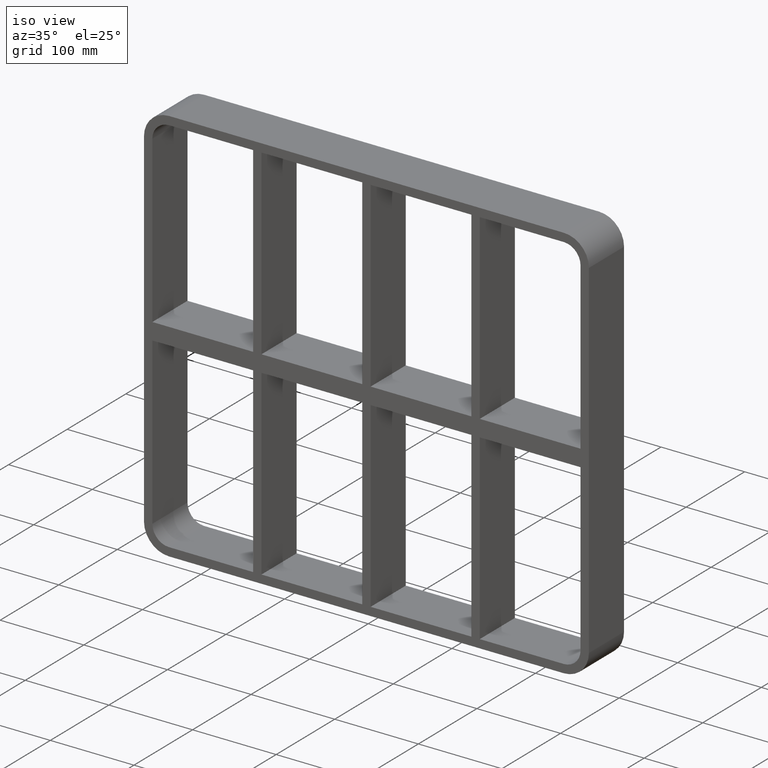
[diagram: clean part render]
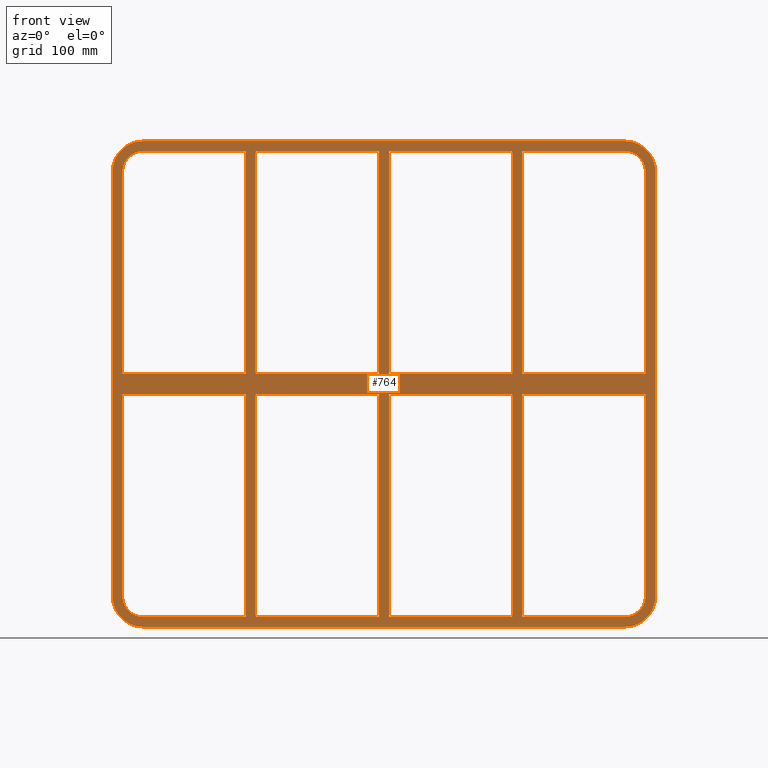
[diagram: tour spotlight — one face highlighted and labeled with its STEP entity id]
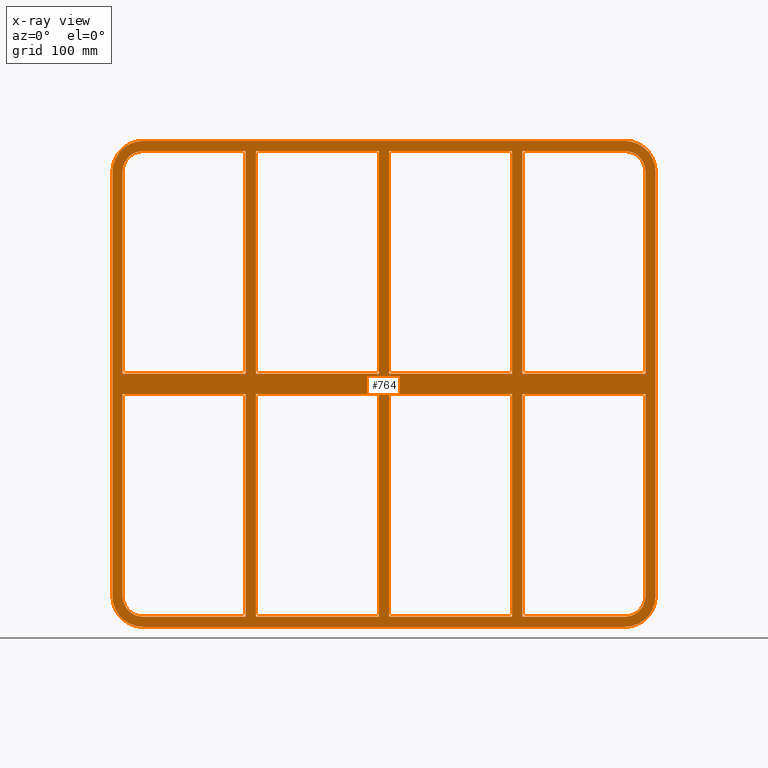
[diagram: x-ray of the same camera — body ghosted, this tour face saturated]
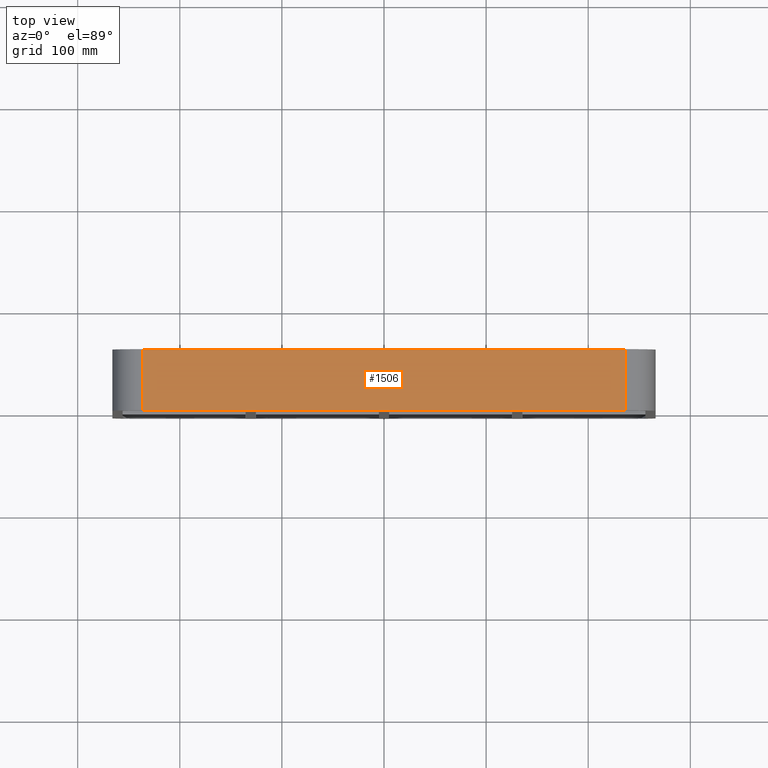
[diagram: tour spotlight — one face highlighted and labeled with its STEP entity id]
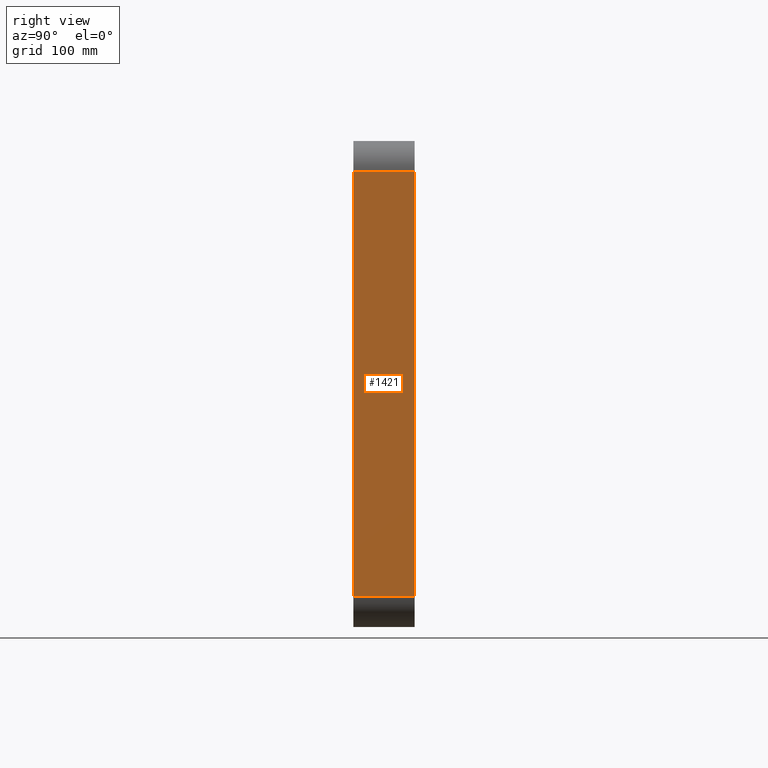
[diagram: tour spotlight — one face highlighted and labeled with its STEP entity id]
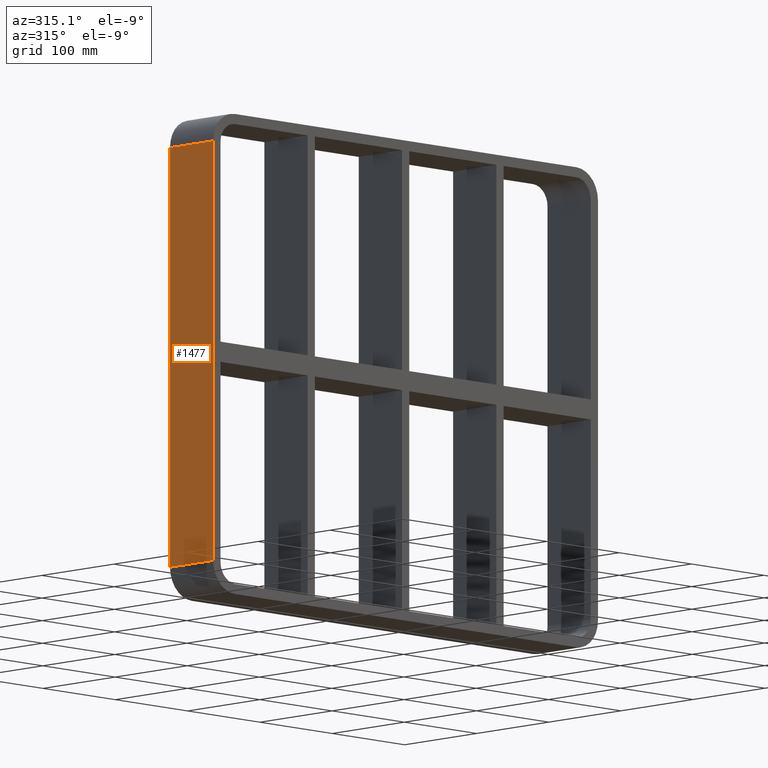
[diagram: tour spotlight — one face highlighted and labeled with its STEP entity id]
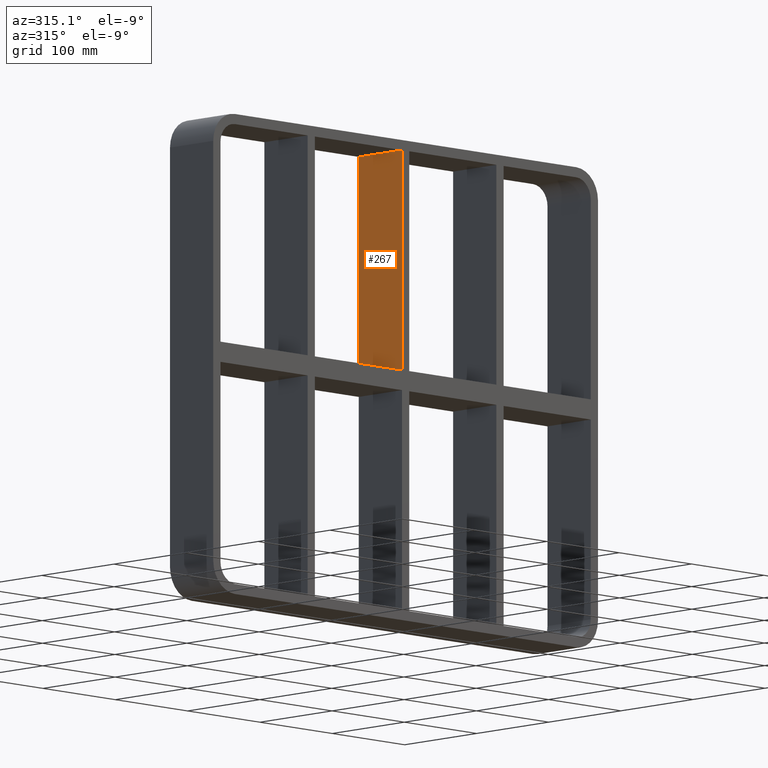
[diagram: tour spotlight — one face highlighted and labeled with its STEP entity id]
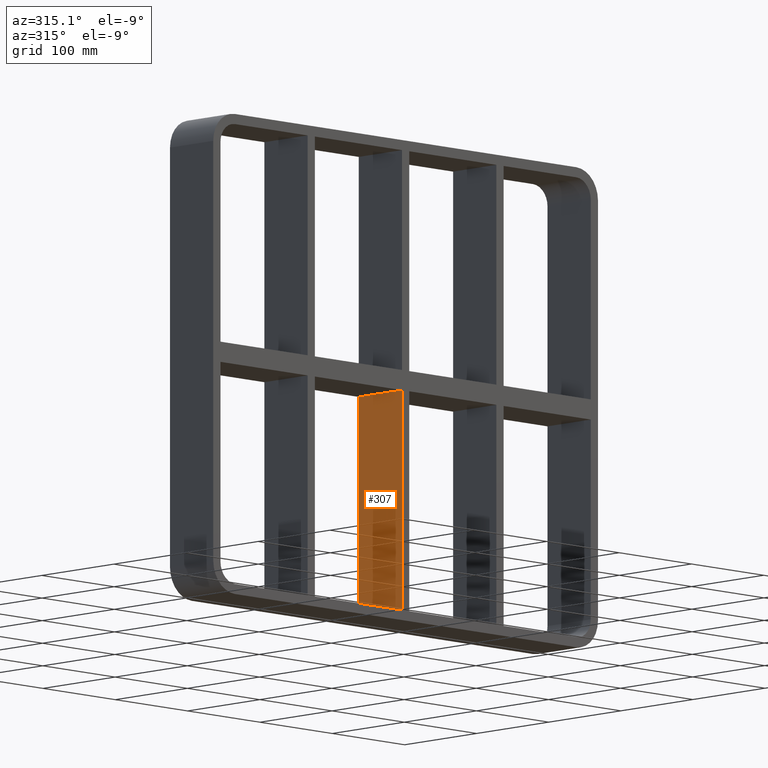
[diagram: tour spotlight — one face highlighted and labeled with its STEP entity id]
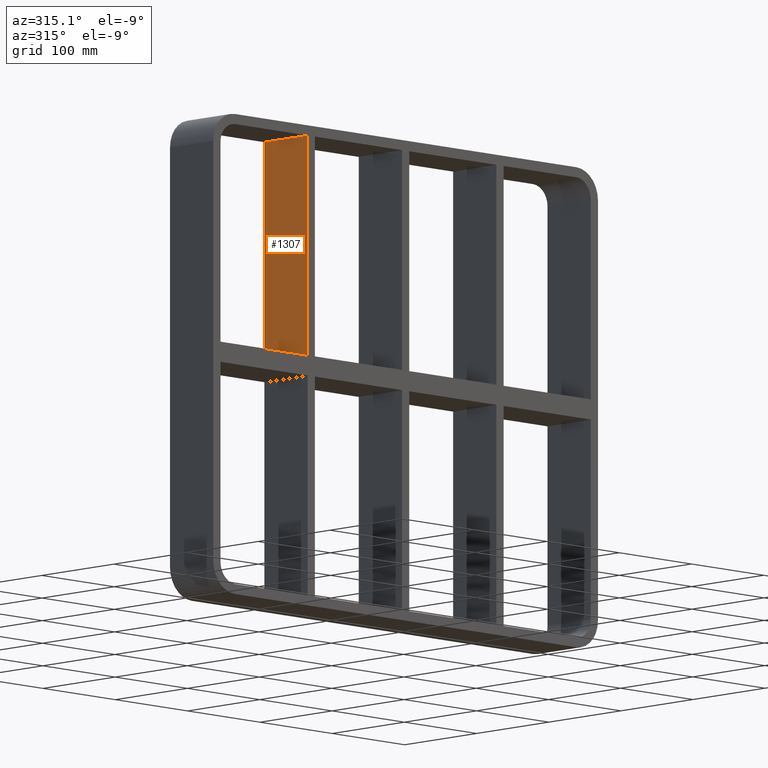
[diagram: tour spotlight — one face highlighted and labeled with its STEP entity id]
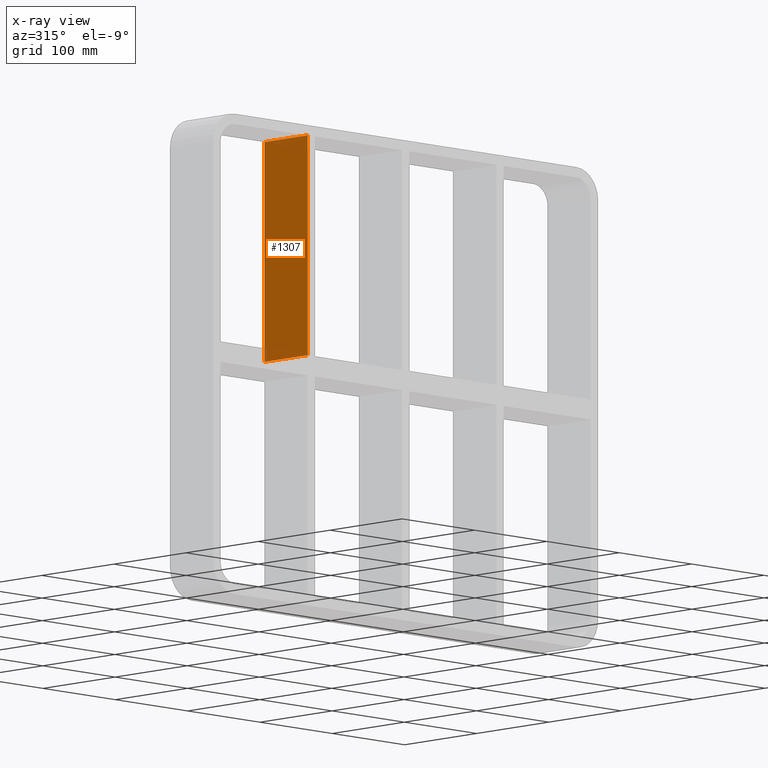
[diagram: x-ray of the same camera — body ghosted, this tour face saturated]
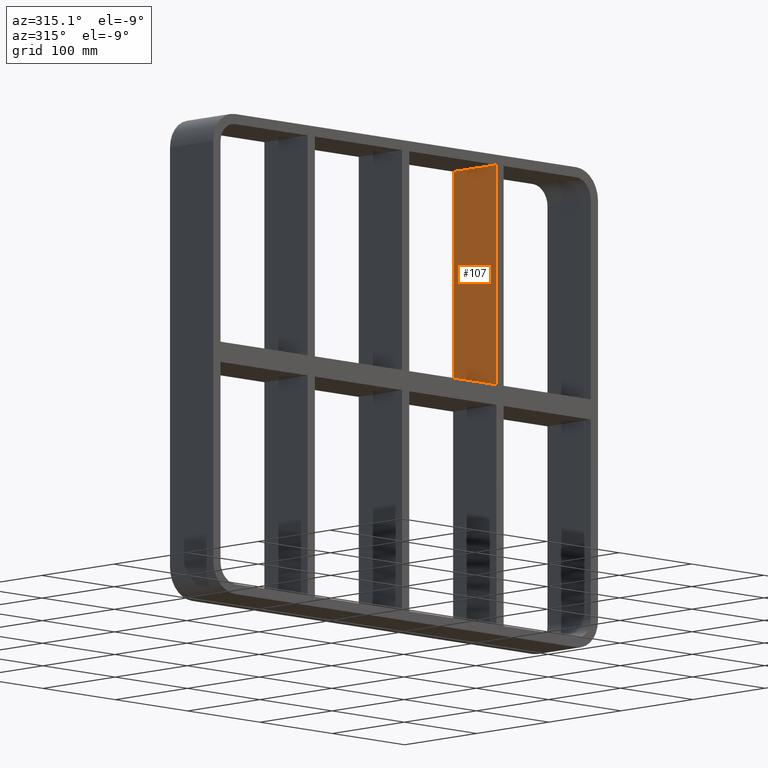
[diagram: tour spotlight — one face highlighted and labeled with its STEP entity id]
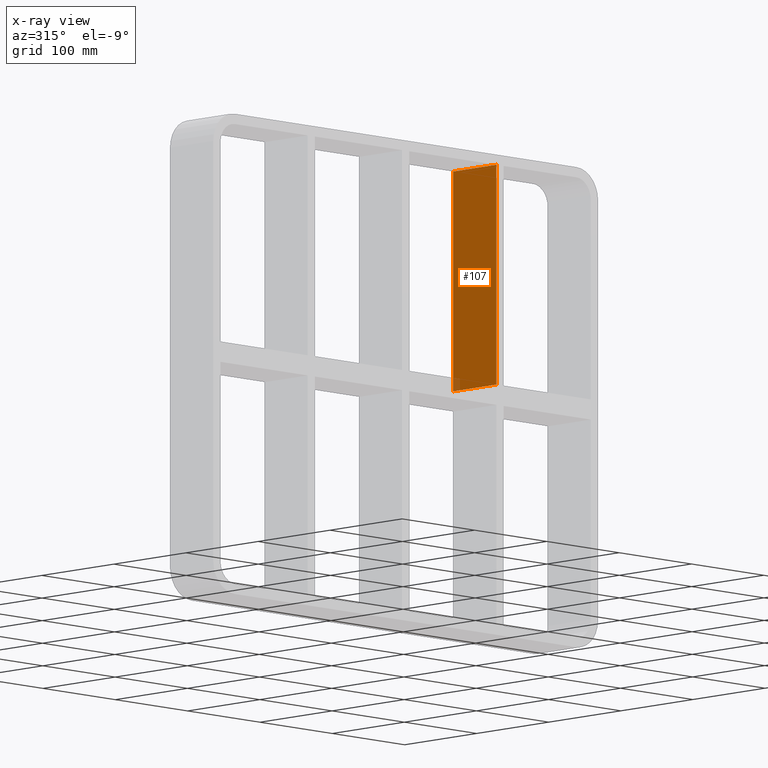
[diagram: x-ray of the same camera — body ghosted, this tour face saturated]
A machine part: a face-by-face anatomy tour. The part has 46 B-rep faces; the first image is the clean iso view, then the 8 largest visible faces are spotlighted one at a time (largest first), each with its STEP entity span.

Face 1 — front view, entity #764. An x-ray twin of the same camera follows (body ghosted, this face saturated) — the face is partly hidden behind the body. In plain terms, the highlighted planar face has unit normal (0, 1, 0).
Definition (entity closure, byte-faithful):
#73=CARTESIAN_POINT('',(125.49999999999862,-3.0,10.0));
#74=VERTEX_POINT('',#73);
#83=CARTESIAN_POINT('',(125.49999999999856,-3.0,228.0));
#84=VERTEX_POINT('',#83);
#85=CARTESIAN_POINT('',(125.49999999999862,-3.0,10.0));
#86=DIRECTION('',(0.0,0.0,1.0));
#87=VECTOR('',#86,218.0);
#88=LINE('',#85,#87);
#89=EDGE_CURVE('',#74,#84,#88,.T.);
#115=CARTESIAN_POINT('',(125.49999999999864,-3.0,-10.000000000009308));
#116=VERTEX_POINT('',#115);
#131=CARTESIAN_POINT('',(125.49999999999869,-3.0,-228.0));
#132=VERTEX_POINT('',#131);
#139=CARTESIAN_POINT('',(125.49999999999869,-3.0,-228.0));
#140=DIRECTION('',(0.0,0.0,1.0));
#141=VECTOR('',#140,217.99999999999071);
#142=LINE('',#139,#141);
#143=EDGE_CURVE('',#132,#116,#142,.T.);
#155=CARTESIAN_POINT('',(135.50000000000728,-3.0,10.0));
#156=VERTEX_POINT('',#155);
#171=CARTESIAN_POINT('',(135.50000000000728,-3.0,228.0));
#172=VERTEX_POINT('',#171);
#179=CARTESIAN_POINT('',(135.50000000000728,-3.0,228.0));
#180=DIRECTION('',(0.0,0.0,-1.0));
#181=VECTOR('',#180,218.0);
#182=LINE('',#179,#181);
#183=EDGE_CURVE('',#172,#156,#182,.T.);
#193=CARTESIAN_POINT('',(135.50000000000728,-3.0,-10.000000000009308));
#194=VERTEX_POINT('',#193);
#203=CARTESIAN_POINT('',(135.50000000000728,-3.0,-227.99999999998451));
#204=VERTEX_POINT('',#203);
#205=CARTESIAN_POINT('',(135.50000000000728,-3.0,-10.000000000009322));
#206=DIRECTION('',(0.0,0.0,-1.0));
#207=VECTOR('',#206,217.99999999997522);
#208=LINE('',#205,#207);
#209=EDGE_CURVE('',#194,#204,#208,.T.);
#233=CARTESIAN_POINT('',(-5.000000000001379,-3.0,10.0));
#234=VERTEX_POINT('',#233);
#243=CARTESIAN_POINT('',(-5.000000000001439,-3.0,228.0));
#244=VERTEX_POINT('',#243);
#245=CARTESIAN_POINT('',(-5.000000000001379,-3.0,10.0));
#246=DIRECTION('',(0.0,0.0,1.0));
#247=VECTOR('',#246,218.0);
#248=LINE('',#245,#247);
#249=EDGE_CURVE('',#234,#244,#248,.T.);
#275=CARTESIAN_POINT('',(-5.000000000001375,-3.0,-10.000000000009308));
#276=VERTEX_POINT('',#275);
#291=CARTESIAN_POINT('',(-5.000000000001315,-3.0,-228.0));
#292=VERTEX_POINT('',#291);
#299=CARTESIAN_POINT('',(-5.000000000001315,-3.0,-228.0));
#300=DIRECTION('',(0.0,0.0,1.0));
#301=VECTOR('',#300,217.99999999999071);
#302=LINE('',#299,#301);
#303=EDGE_CURVE('',#292,#276,#302,.T.);
#315=CARTESIAN_POINT('',(5.000000000007283,-3.0,10.0));
#316=VERTEX_POINT('',#315);
#331=CARTESIAN_POINT('',(5.000000000007283,-3.0,228.0));
#332=VERTEX_POINT('',#331);
#339=CARTESIAN_POINT('',(5.000000000007283,-3.0,228.0));
#340=DIRECTION('',(0.0,0.0,-1.0));
#341=VECTOR('',#340,218.0);
#342=LINE('',#339,#341);
#343=EDGE_CURVE('',#332,#316,#342,.T.);
#353=CARTESIAN_POINT('',(5.000000000007283,-3.0,-10.000000000009308));
#354=VERTEX_POINT('',#353);
#363=CARTESIAN_POINT('',(5.000000000007283,-3.0,-227.99999999998451));
#364=VERTEX_POINT('',#363);
#365=CARTESIAN_POINT('',(5.000000000007283,-3.0,-10.000000000009322));
#366=DIRECTION('',(0.0,0.0,-1.0));
#367=VECTOR('',#366,217.99999999997522);
#368=LINE('',#365,#367);
#369=EDGE_CURVE('',#354,#364,#368,.T.);
#402=CARTESIAN_POINT('',(-125.49999999999272,-3.0,-227.99999999998451));
#403=VERTEX_POINT('',#402);
#410=CARTESIAN_POINT('',(-5.000000000001307,-3.0,-228.0));
#411=DIRECTION('',(-1.0,0.0,0.0));
#412=VECTOR('',#411,120.49999999999142);
#413=LINE('',#410,#412);
#414=EDGE_CURVE('',#292,#403,#413,.T.);
#432=CARTESIAN_POINT('',(125.49999999999871,-3.0,-228.0));
#433=DIRECTION('',(-1.0,0.0,0.0));
#434=VECTOR('',#433,120.4999999999914);
#435=LINE('',#432,#434);
#436=EDGE_CURVE('',#132,#364,#435,.T.);
#447=CARTESIAN_POINT('',(236.00000000000009,-3.0,-228.0));
#448=VERTEX_POINT('',#447);
#449=CARTESIAN_POINT('',(236.00000000000011,-3.0,-228.0));
#450=DIRECTION('',(-1.0,0.0,0.0));
#451=VECTOR('',#450,100.49999999999281);
#452=LINE('',#449,#451);
#453=EDGE_CURVE('',#448,#204,#452,.T.);
#472=CARTESIAN_POINT('',(0.0,-3.0,0.0));
#473=DIRECTION('',(0.0,1.0,0.0));
#474=DIRECTION('',(0.0,0.0,1.0));
#475=AXIS2_PLACEMENT_3D('',#472,#473,#474);
#476=PLANE('',#475);
#477=CARTESIAN_POINT('',(266.0,-3.0,-208.0));
#478=VERTEX_POINT('',#477);
#479=CARTESIAN_POINT('',(236.0,-3.0,-238.0));
#480=VERTEX_POINT('',#479);
#481=CARTESIAN_POINT('',(236.0,-3.0,-208.0));
#482=DIRECTION('',(0.0,1.0,0.0));
#483=DIRECTION('',(0.707106781186547,0.0,-0.707106781186547));
#484=AXIS2_PLACEMENT_3D('',#481,#482,#483);
#485=CIRCLE('',#484,30.0);
#486=EDGE_CURVE('',#478,#480,#485,.T.);
#487=ORIENTED_EDGE('',*,*,#486,.F.);
#488=CARTESIAN_POINT('',(266.0,-3.0,208.0));
#489=VERTEX_POINT('',#488);
#490=CARTESIAN_POINT('',(266.0,-3.0,-208.0));
#491=DIRECTION('',(0.0,0.0,1.0));
#492=VECTOR('',#491,416.0);
#493=LINE('',#490,#492);
#494=EDGE_CURVE('',#478,#489,#493,.T.);
#495=ORIENTED_EDGE('',*,*,#494,.T.);
#496=CARTESIAN_POINT('',(236.0,-3.0,238.0));
#497=VERTEX_POINT('',#496);
#498=CARTESIAN_POINT('',(236.0,-3.0,208.0));
#499=DIRECTION('',(0.0,1.0,0.0));
#500=DIRECTION('',(0.707106781186547,0.0,0.707106781186547));
#501=AXIS2_PLACEMENT_3D('',#498,#499,#500);
#502=CIRCLE('',#501,30.0);
#503=EDGE_CURVE('',#497,#489,#502,.T.);
#504=ORIENTED_EDGE('',*,*,#503,.F.);
#505=CARTESIAN_POINT('',(-236.0,-3.0,238.0));
#506=VERTEX_POINT('',#505);
#507=CARTESIAN_POINT('',(236.0,-3.0,238.0));
#508=DIRECTION('',(-1.0,0.0,0.0));
#509=VECTOR('',#508,472.0);
#510=LINE('',#507,#509);
#511=EDGE_CURVE('',#497,#506,#510,.T.);
#512=ORIENTED_EDGE('',*,*,#511,.T.);
#513=CARTESIAN_POINT('',(-266.0,-3.0,208.0));
#514=VERTEX_POINT('',#513);
#515=CARTESIAN_POINT('',(-236.0,-3.0,208.0));
#516=DIRECTION('',(0.0,1.0,0.0));
#517=DIRECTION('',(-0.707106781186547,0.0,0.707106781186547));
#518=AXIS2_PLACEMENT_3D('',#515,#516,#517);
#519=CIRCLE('',#518,30.0);
#520=EDGE_CURVE('',#514,#506,#519,.T.);
#521=ORIENTED_EDGE('',*,*,#520,.F.);
#522=CARTESIAN_POINT('',(-266.0,-3.0,-208.0));
#523=VERTEX_POINT('',#522);
#524=CARTESIAN_POINT('',(-266.0,-3.0,208.0));
#525=DIRECTION('',(0.0,0.0,-1.0));
#526=VECTOR('',#525,416.0);
#527=LINE('',#524,#526);
#528=EDGE_CURVE('',#514,#523,#527,.T.);
#529=ORIENTED_EDGE('',*,*,#528,.T.);
#530=CARTESIAN_POINT('',(-236.0,-3.0,-238.0));
#531=VERTEX_POINT('',#530);
#532=CARTESIAN_POINT('',(-236.0,-3.0,-208.0));
#533=DIRECTION('',(0.0,1.0,0.0));
#534=DIRECTION('',(-0.707106781186547,0.0,-0.707106781186547));
#535=AXIS2_PLACEMENT_3D('',#532,#533,#534);
#536=CIRCLE('',#535,30.0);
#537=EDGE_CURVE('',#531,#523,#536,.T.);
#538=ORIENTED_EDGE('',*,*,#537,.F.);
#539=CARTESIAN_POINT('',(-236.0,-3.0,-238.0));
#540=DIRECTION('',(1.0,0.0,0.0));
#541=VECTOR('',#540,472.0);
#542=LINE('',#539,#541);
#543=EDGE_CURVE('',#531,#480,#542,.T.);
#544=ORIENTED_EDGE('',*,*,#543,.T.);
#545=EDGE_LOOP('',(#487,#495,#504,#512,#521,#529,#538,#544));
#546=FACE_OUTER_BOUND('',#545,.T.);
#547=ORIENTED_EDGE('',*,*,#436,.T.);
#548=ORIENTED_EDGE('',*,*,#369,.F.);
#549=CARTESIAN_POINT('',(125.49999999999864,-3.0,-10.000000000009313));
#550=DIRECTION('',(-1.0,0.0,0.0));
#551=VECTOR('',#550,120.49999999999136);
#552=LINE('',#549,#551);
#553=EDGE_CURVE('',#116,#354,#552,.T.);
#554=ORIENTED_EDGE('',*,*,#553,.F.);
#555=ORIENTED_EDGE('',*,*,#143,.F.);
#556=EDGE_LOOP('',(#547,#548,#554,#555));
#557=FACE_BOUND('',#556,.T.);
#558=CARTESIAN_POINT('',(5.000000000007304,-3.0,10.0));
#559=DIRECTION('',(1.0,0.0,0.0));
#560=VECTOR('',#559,120.4999999999913);
#561=LINE('',#558,#560);
#562=EDGE_CURVE('',#316,#74,#561,.T.);
#563=ORIENTED_EDGE('',*,*,#562,.F.);
#564=ORIENTED_EDGE('',*,*,#343,.F.);
#565=CARTESIAN_POINT('',(5.000000000007276,-3.0,228.0));
#566=DIRECTION('',(1.0,0.0,0.0));
#567=VECTOR('',#566,120.4999999999913);
#568=LINE('',#565,#567);
#569=EDGE_CURVE('',#332,#84,#568,.T.);
#570=ORIENTED_EDGE('',*,*,#569,.T.);
#571=ORIENTED_EDGE('',*,*,#89,.F.);
#572=EDGE_LOOP('',(#563,#564,#570,#571));
#573=FACE_BOUND('',#572,.T.);
#574=ORIENTED_EDGE('',*,*,#414,.T.);
#575=CARTESIAN_POINT('',(-125.49999999999272,-3.0,-10.000000000009358));
#576=VERTEX_POINT('',#575);
#577=CARTESIAN_POINT('',(-125.49999999999272,-3.0,-10.000000000009351));
#578=DIRECTION('',(0.0,0.0,-1.0));
#579=VECTOR('',#578,217.99999999997519);
#580=LINE('',#577,#579);
#581=EDGE_CURVE('',#576,#403,#580,.T.);
#582=ORIENTED_EDGE('',*,*,#581,.F.);
#583=CARTESIAN_POINT('',(-5.000000000001364,-3.0,-10.000000000009335));
#584=DIRECTION('',(-1.0,0.0,0.0));
#585=VECTOR('',#584,120.49999999999136);
#586=LINE('',#583,#585);
#587=EDGE_CURVE('',#276,#576,#586,.T.);
#588=ORIENTED_EDGE('',*,*,#587,.F.);
#589=ORIENTED_EDGE('',*,*,#303,.F.);
#590=EDGE_LOOP('',(#574,#582,#588,#589));
#591=FACE_BOUND('',#590,.T.);
#592=CARTESIAN_POINT('',(-125.49999999999272,-3.0,10.0));
#593=VERTEX_POINT('',#592);
#594=CARTESIAN_POINT('',(-125.49999999999272,-3.0,10.0));
#595=DIRECTION('',(1.0,0.0,0.0));
#596=VECTOR('',#595,120.49999999999133);
#597=LINE('',#594,#596);
#598=EDGE_CURVE('',#593,#234,#597,.T.);
#599=ORIENTED_EDGE('',*,*,#598,.F.);
#600=CARTESIAN_POINT('',(-125.49999999999272,-3.0,228.0));
#601=VERTEX_POINT('',#600);
#602=CARTESIAN_POINT('',(-125.49999999999272,-3.0,228.0));
#603=DIRECTION('',(0.0,0.0,-1.0));
#604=VECTOR('',#603,218.0);
#605=LINE('',#602,#604);
#606=EDGE_CURVE('',#601,#593,#605,.T.);
#607=ORIENTED_EDGE('',*,*,#606,.F.);
#608=CARTESIAN_POINT('',(-125.49999999999272,-3.0,228.0));
#609=DIRECTION('',(1.0,0.0,0.0));
#610=VECTOR('',#609,120.49999999999129);
#611=LINE('',#608,#610);
#612=EDGE_CURVE('',#601,#244,#611,.T.);
#613=ORIENTED_EDGE('',*,*,#612,.T.);
#614=ORIENTED_EDGE('',*,*,#249,.F.);
#615=EDGE_LOOP('',(#599,#607,#613,#614));
#616=FACE_BOUND('',#615,.T.);
#617=ORIENTED_EDGE('',*,*,#183,.F.);
#618=CARTESIAN_POINT('',(236.00000000000006,-3.0,228.0));
#619=VERTEX_POINT('',#618);
#620=CARTESIAN_POINT('',(135.50000000000728,-3.0,228.0));
#621=DIRECTION('',(1.0,0.0,0.0));
#622=VECTOR('',#621,100.49999999999278);
#623=LINE('',#620,#622);
#624=EDGE_CURVE('',#172,#619,#623,.T.);
#625=ORIENTED_EDGE('',*,*,#624,.T.);
#626=CARTESIAN_POINT('',(256.00000000000011,-3.0,208.0));
#627=VERTEX_POINT('',#626);
#628=CARTESIAN_POINT('',(236.00000000000009,-3.0,208.0));
#629=DIRECTION('',(0.0,-1.0,0.0));
#630=DIRECTION('',(0.707106781186547,0.0,0.707106781186547));
#631=AXIS2_PLACEMENT_3D('',#628,#629,#630);
#632=CIRCLE('',#631,19.999999999999996);
#633=EDGE_CURVE('',#627,#619,#632,.T.);
#634=ORIENTED_EDGE('',*,*,#633,.F.);
#635=CARTESIAN_POINT('',(255.99999999999994,-3.0,10.0));
#636=VERTEX_POINT('',#635);
#637=CARTESIAN_POINT('',(256.00000000000011,-3.0,208.0));
#638=DIRECTION('',(0.0,0.0,-1.0));
#639=VECTOR('',#638,198.0);
#640=LINE('',#637,#639);
#641=EDGE_CURVE('',#627,#636,#640,.T.);
#642=ORIENTED_EDGE('',*,*,#641,.T.);
#643=CARTESIAN_POINT('',(135.5000000000073,-3.0,10.0));
#644=DIRECTION('',(1.0,0.0,0.0));
#645=VECTOR('',#644,120.49999999999267);
#646=LINE('',#643,#645);
#647=EDGE_CURVE('',#156,#636,#646,.T.);
#648=ORIENTED_EDGE('',*,*,#647,.F.);
#649=EDGE_LOOP('',(#617,#625,#634,#642,#648));
#650=FACE_BOUND('',#649,.T.);
#651=ORIENTED_EDGE('',*,*,#209,.F.);
#652=CARTESIAN_POINT('',(256.00000000000364,-3.0,-10.00000000000929));
#653=VERTEX_POINT('',#652);
#654=CARTESIAN_POINT('',(256.00000000000364,-3.0,-10.00000000000929));
#655=DIRECTION('',(-1.0,0.0,0.0));
#656=VECTOR('',#655,120.49999999999636);
#657=LINE('',#654,#656);
#658=EDGE_CURVE('',#653,#194,#657,.T.);
#659=ORIENTED_EDGE('',*,*,#658,.F.);
#660=CARTESIAN_POINT('',(256.00000000000011,-3.0,-208.00000000000006));
#661=VERTEX_POINT('',#660);
#662=CARTESIAN_POINT('',(256.00000000000011,-3.0,-10.000000000009294));
#663=DIRECTION('',(0.0,0.0,-1.0));
#664=VECTOR('',#663,197.99999999999071);
#665=LINE('',#662,#664);
#666=EDGE_CURVE('',#653,#661,#665,.T.);
#667=ORIENTED_EDGE('',*,*,#666,.T.);
#668=CARTESIAN_POINT('',(236.00000000000009,-3.0,-208.0));
#669=DIRECTION('',(0.0,-1.0,0.0));
#670=DIRECTION('',(0.707106781186547,0.0,-0.707106781186547));
#671=AXIS2_PLACEMENT_3D('',#668,#669,#670);
#672=CIRCLE('',#671,19.999999999999996);
#673=EDGE_CURVE('',#448,#661,#672,.T.);
#674=ORIENTED_EDGE('',*,*,#673,.F.);
#675=ORIENTED_EDGE('',*,*,#453,.T.);
#676=EDGE_LOOP('',(#651,#659,#667,#674,#675));
#677=FACE_BOUND('',#676,.T.);
#678=CARTESIAN_POINT('',(-255.9999999999998,-3.0,10.0));
#679=VERTEX_POINT('',#678);
#680=CARTESIAN_POINT('',(-256.0,-3.0,208.00000000000006));
#681=VERTEX_POINT('',#680);
#682=CARTESIAN_POINT('',(-256.0,-3.0,10.0));
#683=DIRECTION('',(0.0,0.0,1.0));
#684=VECTOR('',#683,198.0);
#685=LINE('',#682,#684);
#686=EDGE_CURVE('',#679,#681,#685,.T.);
#687=ORIENTED_EDGE('',*,*,#686,.T.);
#688=CARTESIAN_POINT('',(-236.0,-3.0,228.0));
#689=VERTEX_POINT('',#688);
#690=CARTESIAN_POINT('',(-236.0,-3.0,208.0));
#691=DIRECTION('',(0.0,-1.0,0.0));
#692=DIRECTION('',(-0.707106781186547,0.0,0.707106781186547));
#693=AXIS2_PLACEMENT_3D('',#690,#691,#692);
#694=CIRCLE('',#693,19.999999999999996);
#695=EDGE_CURVE('',#689,#681,#694,.T.);
#696=ORIENTED_EDGE('',*,*,#695,.F.);
#697=CARTESIAN_POINT('',(-135.50000000000145,-3.0,228.0));
#698=VERTEX_POINT('',#697);
#699=CARTESIAN_POINT('',(-236.0,-3.0,228.0));
#700=DIRECTION('',(1.0,0.0,0.0));
#701=VECTOR('',#700,100.49999999999855);
#702=LINE('',#699,#701);
#703=EDGE_CURVE('',#689,#698,#702,.T.);
#704=ORIENTED_EDGE('',*,*,#703,.T.);
#705=CARTESIAN_POINT('',(-135.50000000000139,-3.0,10.0));
#706=VERTEX_POINT('',#705);
#707=CARTESIAN_POINT('',(-135.50000000000136,-3.0,10.0));
#708=DIRECTION('',(0.0,0.0,1.0));
#709=VECTOR('',#708,218.0);
#710=LINE('',#707,#709);
#711=EDGE_CURVE('',#706,#698,#710,.T.);
#712=ORIENTED_EDGE('',*,*,#711,.F.);
#713=CARTESIAN_POINT('',(-255.9999999999998,-3.0,10.0));
#714=DIRECTION('',(1.0,0.0,0.0));
#715=VECTOR('',#714,120.49999999999841);
#716=LINE('',#713,#715);
#717=EDGE_CURVE('',#679,#706,#716,.T.);
#718=ORIENTED_EDGE('',*,*,#717,.F.);
#719=EDGE_LOOP('',(#687,#696,#704,#712,#718));
#720=FACE_BOUND('',#719,.T.);
#721=CARTESIAN_POINT('',(-135.50000000000139,-3.0,-10.00000000000936));
#722=VERTEX_POINT('',#721);
#723=CARTESIAN_POINT('',(-255.99999999999977,-3.0,-10.000000000009379));
#724=VERTEX_POINT('',#723);
#725=CARTESIAN_POINT('',(-135.50000000000136,-3.0,-10.000000000009358));
#726=DIRECTION('',(-1.0,0.0,0.0));
#727=VECTOR('',#726,120.49999999999841);
#728=LINE('',#725,#727);
#729=EDGE_CURVE('',#722,#724,#728,.T.);
#730=ORIENTED_EDGE('',*,*,#729,.F.);
#731=CARTESIAN_POINT('',(-135.50000000000131,-3.0,-228.0));
#732=VERTEX_POINT('',#731);
#733=CARTESIAN_POINT('',(-135.50000000000131,-3.0,-228.0));
#734=DIRECTION('',(0.0,0.0,1.0));
#735=VECTOR('',#734,217.99999999999068);
#736=LINE('',#733,#735);
#737=EDGE_CURVE('',#732,#722,#736,.T.);
#738=ORIENTED_EDGE('',*,*,#737,.F.);
#739=CARTESIAN_POINT('',(-236.0,-3.0,-228.0));
#740=VERTEX_POINT('',#739);
#741=CARTESIAN_POINT('',(-135.50000000000131,-3.0,-228.0));
#742=DIRECTION('',(-1.0,0.0,0.0));
#743=VECTOR('',#742,100.49999999999869);
#744=LINE('',#741,#743);
#745=EDGE_CURVE('',#732,#740,#744,.T.);
#746=ORIENTED_EDGE('',*,*,#745,.T.);
#747=CARTESIAN_POINT('',(-256.0,-3.0,-208.0));
#748=VERTEX_POINT('',#747);
#749=CARTESIAN_POINT('',(-236.0,-3.0,-208.0));
#750=DIRECTION('',(0.0,-1.0,0.0));
#751=DIRECTION('',(-0.707106781186547,0.0,-0.707106781186547));
#752=AXIS2_PLACEMENT_3D('',#749,#750,#751);
#753=CIRCLE('',#752,19.999999999999996);
#754=EDGE_CURVE('',#748,#740,#753,.T.);
#755=ORIENTED_EDGE('',*,*,#754,.F.);
#756=CARTESIAN_POINT('',(-256.0,-3.0,-208.0));
#757=DIRECTION('',(0.0,0.0,1.0));
#758=VECTOR('',#757,197.99999999999062);
#759=LINE('',#756,#758);
#760=EDGE_CURVE('',#748,#724,#759,.T.);
#761=ORIENTED_EDGE('',*,*,#760,.T.);
#762=EDGE_LOOP('',(#730,#738,#746,#755,#761));
#763=FACE_BOUND('',#762,.T.);
#764=ADVANCED_FACE('',(#546,#557,#573,#591,#616,#650,#677,#720,#763),#476,.F.);

Face 2 — top view, entity #1506. In plain terms, the highlighted planar face has unit normal (0, 0, 1).
Definition (entity closure, byte-faithful):
#496=CARTESIAN_POINT('',(236.0,-3.0,238.0));
#497=VERTEX_POINT('',#496);
#505=CARTESIAN_POINT('',(-236.0,-3.0,238.0));
#506=VERTEX_POINT('',#505);
#507=CARTESIAN_POINT('',(236.0,-3.0,238.0));
#508=DIRECTION('',(-1.0,0.0,0.0));
#509=VECTOR('',#508,472.0);
#510=LINE('',#507,#509);
#511=EDGE_CURVE('',#497,#506,#510,.T.);
#854=CARTESIAN_POINT('',(-236.0,57.0,238.0));
#855=VERTEX_POINT('',#854);
#863=CARTESIAN_POINT('',(236.0,57.0,238.0));
#864=VERTEX_POINT('',#863);
#865=CARTESIAN_POINT('',(-236.0,57.0,238.0));
#866=DIRECTION('',(1.0,0.0,0.0));
#867=VECTOR('',#866,472.0);
#868=LINE('',#865,#867);
#869=EDGE_CURVE('',#855,#864,#868,.T.);
#1430=CARTESIAN_POINT('',(236.0,57.0,238.0));
#1431=DIRECTION('',(0.0,-1.0,0.0));
#1432=VECTOR('',#1431,60.0);
#1433=LINE('',#1430,#1432);
#1434=EDGE_CURVE('',#864,#497,#1433,.T.);
#1486=CARTESIAN_POINT('',(-236.0,-3.0,238.0));
#1487=DIRECTION('',(0.0,1.0,0.0));
#1488=VECTOR('',#1487,60.0);
#1489=LINE('',#1486,#1488);
#1490=EDGE_CURVE('',#506,#855,#1489,.T.);
#1495=CARTESIAN_POINT('',(-266.0,0.0,238.0));
#1496=DIRECTION('',(0.0,0.0,1.0));
#1497=DIRECTION('',(1.0,0.0,0.0));
#1498=AXIS2_PLACEMENT_3D('',#1495,#1496,#1497);
#1499=PLANE('',#1498);
#1500=ORIENTED_EDGE('',*,*,#1434,.F.);
#1501=ORIENTED_EDGE('',*,*,#869,.F.);
#1502=ORIENTED_EDGE('',*,*,#1490,.F.);
#1503=ORIENTED_EDGE('',*,*,#511,.F.);
#1504=EDGE_LOOP('',(#1500,#1501,#1502,#1503));
#1505=FACE_OUTER_BOUND('',#1504,.T.);
#1506=ADVANCED_FACE('',(#1505),#1499,.T.);

Face 3 — right view, entity #1421. In plain terms, the highlighted planar face has unit normal (1, 0, 0).
Definition (entity closure, byte-faithful):
#477=CARTESIAN_POINT('',(266.0,-3.0,-208.0));
#478=VERTEX_POINT('',#477);
#488=CARTESIAN_POINT('',(266.0,-3.0,208.0));
#489=VERTEX_POINT('',#488);
#490=CARTESIAN_POINT('',(266.0,-3.0,-208.0));
#491=DIRECTION('',(0.0,0.0,1.0));
#492=VECTOR('',#491,416.0);
#493=LINE('',#490,#492);
#494=EDGE_CURVE('',#478,#489,#493,.T.);
#820=CARTESIAN_POINT('',(266.0,57.0,-208.0));
#821=VERTEX_POINT('',#820);
#871=CARTESIAN_POINT('',(266.0,57.0,208.0));
#872=VERTEX_POINT('',#871);
#880=CARTESIAN_POINT('',(266.0,57.0,208.0));
#881=DIRECTION('',(0.0,0.0,-1.0));
#882=VECTOR('',#881,416.0);
#883=LINE('',#880,#882);
#884=EDGE_CURVE('',#872,#821,#883,.T.);
#1389=CARTESIAN_POINT('',(266.0,57.0,-208.0));
#1390=DIRECTION('',(0.0,-1.0,0.0));
#1391=VECTOR('',#1390,60.0);
#1392=LINE('',#1389,#1391);
#1393=EDGE_CURVE('',#821,#478,#1392,.T.);
#1405=CARTESIAN_POINT('',(266.0,0.0,238.0));
#1406=DIRECTION('',(1.0,0.0,0.0));
#1407=DIRECTION('',(0.0,0.0,-1.0));
#1408=AXIS2_PLACEMENT_3D('',#1405,#1406,#1407);
#1409=PLANE('',#1408);
#1410=ORIENTED_EDGE('',*,*,#1393,.F.);
#1411=ORIENTED_EDGE('',*,*,#884,.F.);
#1412=CARTESIAN_POINT('',(266.0,-3.0,208.0));
#1413=DIRECTION('',(0.0,1.0,0.0));
#1414=VECTOR('',#1413,60.0);
#1415=LINE('',#1412,#1414);
#1416=EDGE_CURVE('',#489,#872,#1415,.T.);
#1417=ORIENTED_EDGE('',*,*,#1416,.F.);
#1418=ORIENTED_EDGE('',*,*,#494,.F.);
#1419=EDGE_LOOP('',(#1410,#1411,#1417,#1418));
#1420=FACE_OUTER_BOUND('',#1419,.T.);
#1421=ADVANCED_FACE('',(#1420),#1409,.T.);

Face 4 — auxiliary view, entity #1477. In plain terms, the highlighted planar face has unit normal (-1, 0, 0).
Definition (entity closure, byte-faithful):
#513=CARTESIAN_POINT('',(-266.0,-3.0,208.0));
#514=VERTEX_POINT('',#513);
#522=CARTESIAN_POINT('',(-266.0,-3.0,-208.0));
#523=VERTEX_POINT('',#522);
#524=CARTESIAN_POINT('',(-266.0,-3.0,208.0));
#525=DIRECTION('',(0.0,0.0,-1.0));
#526=VECTOR('',#525,416.0);
#527=LINE('',#524,#526);
#528=EDGE_CURVE('',#514,#523,#527,.T.);
#837=CARTESIAN_POINT('',(-266.0,57.0,-208.0));
#838=VERTEX_POINT('',#837);
#846=CARTESIAN_POINT('',(-266.0,57.0,208.0));
#847=VERTEX_POINT('',#846);
#848=CARTESIAN_POINT('',(-266.0,57.0,-208.0));
#849=DIRECTION('',(0.0,0.0,1.0));
#850=VECTOR('',#849,416.0);
#851=LINE('',#848,#850);
#852=EDGE_CURVE('',#838,#847,#851,.T.);
#1452=CARTESIAN_POINT('',(-266.0,-3.0,-208.0));
#1453=DIRECTION('',(0.0,1.0,0.0));
#1454=VECTOR('',#1453,60.0);
#1455=LINE('',#1452,#1454);
#1456=EDGE_CURVE('',#523,#838,#1455,.T.);
#1461=CARTESIAN_POINT('',(-266.0,0.0,-238.0));
#1462=DIRECTION('',(-1.0,0.0,0.0));
#1463=DIRECTION('',(0.0,0.0,1.0));
#1464=AXIS2_PLACEMENT_3D('',#1461,#1462,#1463);
#1465=PLANE('',#1464);
#1466=ORIENTED_EDGE('',*,*,#1456,.F.);
#1467=ORIENTED_EDGE('',*,*,#528,.F.);
#1468=CARTESIAN_POINT('',(-266.0,57.0,208.0));
#1469=DIRECTION('',(0.0,-1.0,0.0));
#1470=VECTOR('',#1469,60.0);
#1471=LINE('',#1468,#1470);
#1472=EDGE_CURVE('',#847,#514,#1471,.T.);
#1473=ORIENTED_EDGE('',*,*,#1472,.F.);
#1474=ORIENTED_EDGE('',*,*,#852,.F.);
#1475=EDGE_LOOP('',(#1466,#1467,#1473,#1474));
#1476=FACE_OUTER_BOUND('',#1475,.T.);
#1477=ADVANCED_FACE('',(#1476),#1465,.T.);

Face 5 — auxiliary view, entity #267. In plain terms, the highlighted planar face has unit normal (-1, 0, 0).
Definition (entity closure, byte-faithful):
#228=CARTESIAN_POINT('',(-5.000000000001315,-3.0,-228.0));
#229=DIRECTION('',(-1.0,0.0,0.0));
#230=DIRECTION('',(0.0,0.0,1.0));
#231=AXIS2_PLACEMENT_3D('',#228,#229,#230);
#232=PLANE('',#231);
#233=CARTESIAN_POINT('',(-5.000000000001379,-3.0,10.0));
#234=VERTEX_POINT('',#233);
#235=CARTESIAN_POINT('',(-5.000000000001379,57.0,10.0));
#236=VERTEX_POINT('',#235);
#237=CARTESIAN_POINT('',(-5.000000000001382,-3.0,10.0));
#238=DIRECTION('',(0.0,1.0,0.0));
#239=VECTOR('',#238,60.0);
#240=LINE('',#237,#239);
#241=EDGE_CURVE('',#234,#236,#240,.T.);
#242=ORIENTED_EDGE('',*,*,#241,.F.);
#243=CARTESIAN_POINT('',(-5.000000000001439,-3.0,228.0));
#244=VERTEX_POINT('',#243);
#245=CARTESIAN_POINT('',(-5.000000000001379,-3.0,10.0));
#246=DIRECTION('',(0.0,0.0,1.0));
#247=VECTOR('',#246,218.0);
#248=LINE('',#245,#247);
#249=EDGE_CURVE('',#234,#244,#248,.T.);
#250=ORIENTED_EDGE('',*,*,#249,.T.);
#251=CARTESIAN_POINT('',(-5.000000000001439,57.0,228.0));
#252=VERTEX_POINT('',#251);
#253=CARTESIAN_POINT('',(-5.00000000000143,57.000000000000007,228.0));
#254=DIRECTION('',(0.0,-1.0,0.0));
#255=VECTOR('',#254,60.000000000000007);
#256=LINE('',#253,#255);
#257=EDGE_CURVE('',#252,#244,#256,.T.);
#258=ORIENTED_EDGE('',*,*,#257,.F.);
#259=CARTESIAN_POINT('',(-5.000000000001379,57.0,10.0));
#260=DIRECTION('',(0.0,0.0,1.0));
#261=VECTOR('',#260,218.0);
#262=LINE('',#259,#261);
#263=EDGE_CURVE('',#236,#252,#262,.T.);
#264=ORIENTED_EDGE('',*,*,#263,.F.);
#265=EDGE_LOOP('',(#242,#250,#258,#264));
#266=FACE_OUTER_BOUND('',#265,.T.);
#267=ADVANCED_FACE('',(#266),#232,.T.);

Face 6 — auxiliary view, entity #307. In plain terms, the highlighted planar face has unit normal (-1, 0, 0).
Definition (entity closure, byte-faithful):
#268=CARTESIAN_POINT('',(-5.000000000001315,-3.0,-228.0));
#269=DIRECTION('',(-1.0,0.0,0.0));
#270=DIRECTION('',(0.0,0.0,1.0));
#271=AXIS2_PLACEMENT_3D('',#268,#269,#270);
#272=PLANE('',#271);
#273=CARTESIAN_POINT('',(-5.000000000001375,57.0,-10.000000000009308));
#274=VERTEX_POINT('',#273);
#275=CARTESIAN_POINT('',(-5.000000000001375,-3.0,-10.000000000009308));
#276=VERTEX_POINT('',#275);
#277=CARTESIAN_POINT('',(-5.00000000000138,57.0,-10.000000000009344));
#278=DIRECTION('',(0.0,-1.0,0.0));
#279=VECTOR('',#278,60.0);
#280=LINE('',#277,#279);
#281=EDGE_CURVE('',#274,#276,#280,.T.);
#282=ORIENTED_EDGE('',*,*,#281,.F.);
#283=CARTESIAN_POINT('',(-5.000000000001315,57.0,-228.0));
#284=VERTEX_POINT('',#283);
#285=CARTESIAN_POINT('',(-5.000000000001315,57.0,-228.0));
#286=DIRECTION('',(0.0,0.0,1.0));
#287=VECTOR('',#286,217.99999999999071);
#288=LINE('',#285,#287);
#289=EDGE_CURVE('',#284,#274,#288,.T.);
#290=ORIENTED_EDGE('',*,*,#289,.F.);
#291=CARTESIAN_POINT('',(-5.000000000001315,-3.0,-228.0));
#292=VERTEX_POINT('',#291);
#293=CARTESIAN_POINT('',(-5.000000000001315,-3.0,-228.0));
#294=DIRECTION('',(0.0,1.0,0.0));
#295=VECTOR('',#294,60.000000000000007);
#296=LINE('',#293,#295);
#297=EDGE_CURVE('',#292,#284,#296,.T.);
#298=ORIENTED_EDGE('',*,*,#297,.F.);
#299=CARTESIAN_POINT('',(-5.000000000001315,-3.0,-228.0));
#300=DIRECTION('',(0.0,0.0,1.0));
#301=VECTOR('',#300,217.99999999999071);
#302=LINE('',#299,#301);
#303=EDGE_CURVE('',#292,#276,#302,.T.);
#304=ORIENTED_EDGE('',*,*,#303,.T.);
#305=EDGE_LOOP('',(#282,#290,#298,#304));
#306=FACE_OUTER_BOUND('',#305,.T.);
#307=ADVANCED_FACE('',(#306),#272,.T.);

Face 7 — auxiliary view, entity #1307. An x-ray twin of the same camera follows (body ghosted, this face saturated) — the face is partly hidden behind the body. In plain terms, the highlighted planar face has unit normal (-1, 0, 0).
Definition (entity closure, byte-faithful):
#697=CARTESIAN_POINT('',(-135.50000000000145,-3.0,228.0));
#698=VERTEX_POINT('',#697);
#705=CARTESIAN_POINT('',(-135.50000000000139,-3.0,10.0));
#706=VERTEX_POINT('',#705);
#707=CARTESIAN_POINT('',(-135.50000000000136,-3.0,10.0));
#708=DIRECTION('',(0.0,0.0,1.0));
#709=VECTOR('',#708,218.0);
#710=LINE('',#707,#709);
#711=EDGE_CURVE('',#706,#698,#710,.T.);
#982=CARTESIAN_POINT('',(-135.50000000000139,57.0,10.0));
#983=VERTEX_POINT('',#982);
#990=CARTESIAN_POINT('',(-135.50000000000145,57.0,228.0));
#991=VERTEX_POINT('',#990);
#992=CARTESIAN_POINT('',(-135.50000000000136,57.0,10.0));
#993=DIRECTION('',(0.0,0.0,1.0));
#994=VECTOR('',#993,218.0);
#995=LINE('',#992,#994);
#996=EDGE_CURVE('',#983,#991,#995,.T.);
#1223=CARTESIAN_POINT('',(-135.50000000000139,57.0,10.0));
#1224=DIRECTION('',(0.0,-1.0,0.0));
#1225=VECTOR('',#1224,60.0);
#1226=LINE('',#1223,#1225);
#1227=EDGE_CURVE('',#983,#706,#1226,.T.);
#1291=CARTESIAN_POINT('',(-135.50000000000131,-3.0,-228.0));
#1292=DIRECTION('',(-1.0,0.0,0.0));
#1293=DIRECTION('',(0.0,0.0,1.0));
#1294=AXIS2_PLACEMENT_3D('',#1291,#1292,#1293);
#1295=PLANE('',#1294);
#1296=ORIENTED_EDGE('',*,*,#1227,.T.);
#1297=ORIENTED_EDGE('',*,*,#711,.T.);
#1298=CARTESIAN_POINT('',(-135.50000000000145,57.000000000000007,228.0));
#1299=DIRECTION('',(0.0,-1.0,0.0));
#1300=VECTOR('',#1299,60.000000000000007);
#1301=LINE('',#1298,#1300);
#1302=EDGE_CURVE('',#991,#698,#1301,.T.);
#1303=ORIENTED_EDGE('',*,*,#1302,.F.);
#1304=ORIENTED_EDGE('',*,*,#996,.F.);
#1305=EDGE_LOOP('',(#1296,#1297,#1303,#1304));
#1306=FACE_OUTER_BOUND('',#1305,.T.);
#1307=ADVANCED_FACE('',(#1306),#1295,.T.);

Face 8 — auxiliary view, entity #107. An x-ray twin of the same camera follows (body ghosted, this face saturated) — the face is partly hidden behind the body. In plain terms, the highlighted planar face has unit normal (-1, 0, 0).
Definition (entity closure, byte-faithful):
#68=CARTESIAN_POINT('',(125.49999999999869,-3.0,-228.0));
#69=DIRECTION('',(-1.0,0.0,0.0));
#70=DIRECTION('',(0.0,0.0,1.0));
#71=AXIS2_PLACEMENT_3D('',#68,#69,#70);
#72=PLANE('',#71);
#73=CARTESIAN_POINT('',(125.49999999999862,-3.0,10.0));
#74=VERTEX_POINT('',#73);
#75=CARTESIAN_POINT('',(125.49999999999862,57.0,10.0));
#76=VERTEX_POINT('',#75);
#77=CARTESIAN_POINT('',(125.49999999999862,-3.0,10.0));
#78=DIRECTION('',(0.0,1.0,0.0));
#79=VECTOR('',#78,60.0);
#80=LINE('',#77,#79);
#81=EDGE_CURVE('',#74,#76,#80,.T.);
#82=ORIENTED_EDGE('',*,*,#81,.F.);
#83=CARTESIAN_POINT('',(125.49999999999856,-3.0,228.0));
#84=VERTEX_POINT('',#83);
#85=CARTESIAN_POINT('',(125.49999999999862,-3.0,10.0));
#86=DIRECTION('',(0.0,0.0,1.0));
#87=VECTOR('',#86,218.0);
#88=LINE('',#85,#87);
#89=EDGE_CURVE('',#74,#84,#88,.T.);
#90=ORIENTED_EDGE('',*,*,#89,.T.);
#91=CARTESIAN_POINT('',(125.49999999999856,57.0,228.0));
#92=VERTEX_POINT('',#91);
#93=CARTESIAN_POINT('',(125.49999999999856,57.000000000000007,228.0));
#94=DIRECTION('',(0.0,-1.0,0.0));
#95=VECTOR('',#94,60.000000000000007);
#96=LINE('',#93,#95);
#97=EDGE_CURVE('',#92,#84,#96,.T.);
#98=ORIENTED_EDGE('',*,*,#97,.F.);
#99=CARTESIAN_POINT('',(125.49999999999862,57.0,10.0));
#100=DIRECTION('',(0.0,0.0,1.0));
#101=VECTOR('',#100,218.0);
#102=LINE('',#99,#101);
#103=EDGE_CURVE('',#76,#92,#102,.T.);
#104=ORIENTED_EDGE('',*,*,#103,.F.);
#105=EDGE_LOOP('',(#82,#90,#98,#104));
#106=FACE_OUTER_BOUND('',#105,.T.);
#107=ADVANCED_FACE('',(#106),#72,.T.);